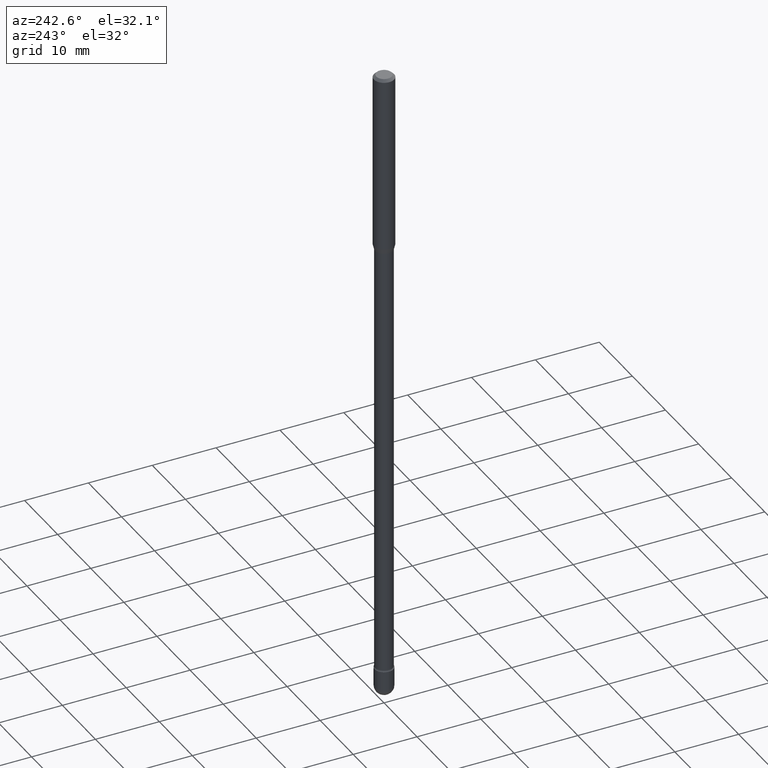
[diagram: clean part render]
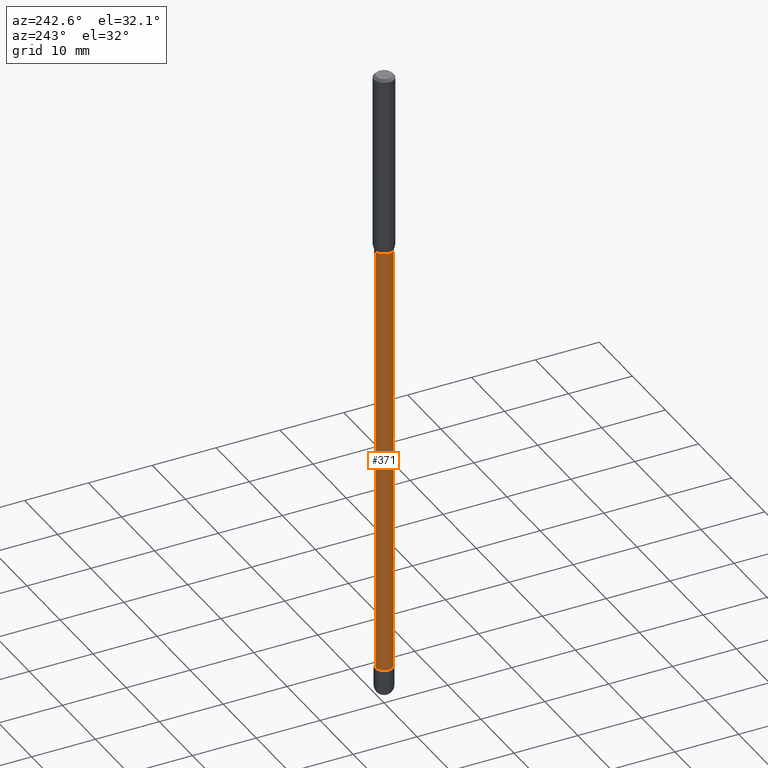
[diagram: same view with one face highlighted and labeled with its STEP entity id]
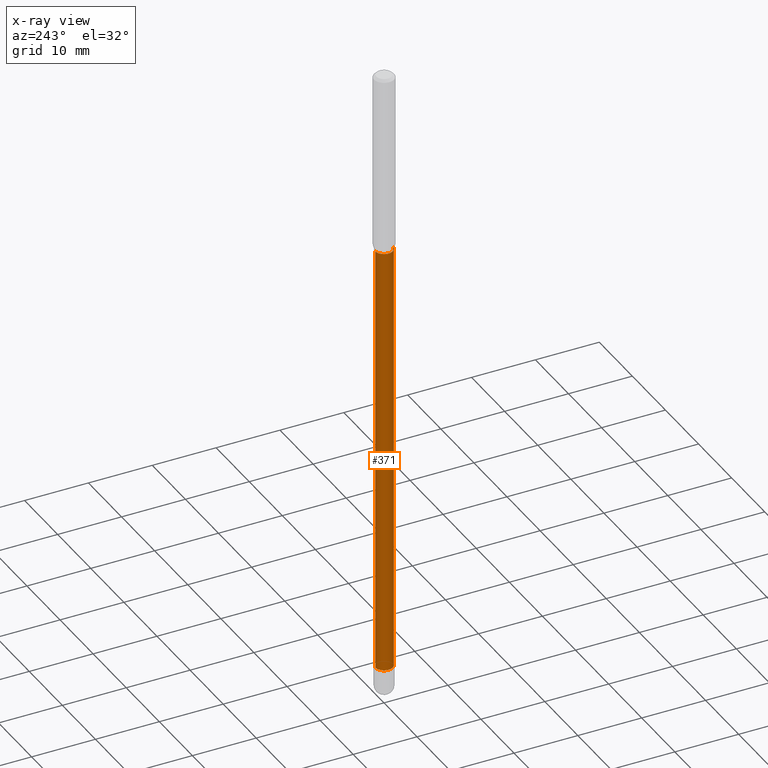
[diagram: x-ray of the same camera — body ghosted, the highlighted face saturated]
A machine part, auxiliary view. The second image highlights one B-rep face of the part: STEP entity #371.
The next image is the same camera in x-ray: the body ghosted, the highlighted face saturated — about 0% of this face is hidden behind the body in this view.
In plain terms, the highlighted cylindrical surface (edge-blend (fillet) strip) has radius 1.3729 mm, axis along (-0, 0, 1).
Its self-contained STEP definition (entity closure, byte-faithful):
#7 = EDGE_LOOP ( 'NONE', ( #543, #189, #50, #102 ) ) ;
#13 = VERTEX_POINT ( 'NONE', #51 ) ;
#30 = CIRCLE ( 'NONE', #555, 0.05405000000000025062 ) ;
#50 = ORIENTED_EDGE ( 'NONE', *, *, #273, .T. ) ;
#51 = CARTESIAN_POINT ( 'NONE',  ( 3.963052108702903812E-16, 0.05404999999998692101, -3.817429341715430358 ) ) ;
#54 = DIRECTION ( 'NONE',  ( -2.445471990974716450E-29, 3.491476778043199636E-15, 1.000000000000000000 ) ) ;
#58 = AXIS2_PLACEMENT_3D ( 'NONE', #550, #162, #462 ) ;
#59 = CARTESIAN_POINT ( 'NONE',  ( 9.335416532690136069E-29, -1.332846589842016420E-14, -3.817429341715430358 ) ) ;
#77 = CARTESIAN_POINT ( 'NONE',  ( -3.774291327289152172E-16, -0.05405000000000394211, -1.126974787463810745 ) ) ;
#86 = EDGE_CURVE ( 'NONE', #13, #128, #30, .T. ) ;
#89 = CYLINDRICAL_SURFACE ( 'NONE', #482, 0.05405000000000013266 ) ;
#101 = DIRECTION ( 'NONE',  ( -2.445471990974716731E-29, 3.491476778043199636E-15, 1.000000000000000000 ) ) ;
#102 = ORIENTED_EDGE ( 'NONE', *, *, #404, .F. ) ;
#122 = CARTESIAN_POINT ( 'NONE',  ( 3.840483486784283759E-16, 0.05404999999999607341, -1.126974787463810967 ) ) ;
#128 = VERTEX_POINT ( 'NONE', #347 ) ;
#133 = LINE ( 'NONE', #312, #262 ) ;
#162 = DIRECTION ( 'NONE',  ( -2.445471990974716731E-29, 3.491476778043199636E-15, 1.000000000000000000 ) ) ;
#172 = VERTEX_POINT ( 'NONE', #77 ) ;
#189 = ORIENTED_EDGE ( 'NONE', *, *, #86, .T. ) ;
#196 = DIRECTION ( 'NONE',  ( -2.445471990974716731E-29, 3.491476778043199636E-15, 1.000000000000000000 ) ) ;
#216 = VERTEX_POINT ( 'NONE', #122 ) ;
#243 = VECTOR ( 'NONE', #54, 39.37007874015748143 ) ;
#262 = VECTOR ( 'NONE', #487, 39.37007874015748143 ) ;
#270 = DIRECTION ( 'NONE',  ( -6.982962677686265922E-15, -1.000000000000000000, 3.491476778043199242E-15 ) ) ;
#273 = EDGE_CURVE ( 'NONE', #128, #172, #133, .T. ) ;
#312 = CARTESIAN_POINT ( 'NONE',  ( -3.774291327289436162E-16, -0.05405000000000013266, 6.667877187444814746E-16 ) ) ;
#316 = CARTESIAN_POINT ( 'NONE',  ( -1.169113584055446105E-44, 1.669184350826100908E-30, 4.780733988912460139E-16 ) ) ;
#320 = LINE ( 'NONE', #445, #243 ) ;
#326 = FACE_OUTER_BOUND ( 'NONE', #7, .T. ) ;
#347 = CARTESIAN_POINT ( 'NONE',  ( -3.774291327288510236E-16, -0.05405000000001357330, -3.817429341715430358 ) ) ;
#371 = ADVANCED_FACE ( 'NONE', ( #326 ), #89, .T. ) ;
#379 = EDGE_CURVE ( 'NONE', #13, #216, #320, .T. ) ;
#389 = DIRECTION ( 'NONE',  ( -6.982962677686265922E-15, -1.000000000000000000, 0.000000000000000000 ) ) ;
#404 = EDGE_CURVE ( 'NONE', #216, #172, #456, .T. ) ;
#445 = CARTESIAN_POINT ( 'NONE',  ( 3.840483486783349945E-16, 0.05405000000000013266, 2.893590790380107011E-16 ) ) ;
#456 = CIRCLE ( 'NONE', #58, 0.05405000000000000776 ) ;
#462 = DIRECTION ( 'NONE',  ( -6.982962677686265922E-15, -1.000000000000000000, 2.527148930309216366E-15 ) ) ;
#482 = AXIS2_PLACEMENT_3D ( 'NONE', #316, #101, #270 ) ;
#487 = DIRECTION ( 'NONE',  ( -2.445471990974716450E-29, 3.491476778043199636E-15, 1.000000000000000000 ) ) ;
#543 = ORIENTED_EDGE ( 'NONE', *, *, #379, .F. ) ;
#550 = CARTESIAN_POINT ( 'NONE',  ( 2.755985277277434029E-29, -3.934806299870066336E-15, -1.126974787463810967 ) ) ;
#555 = AXIS2_PLACEMENT_3D ( 'NONE', #59, #196, #389 ) ;